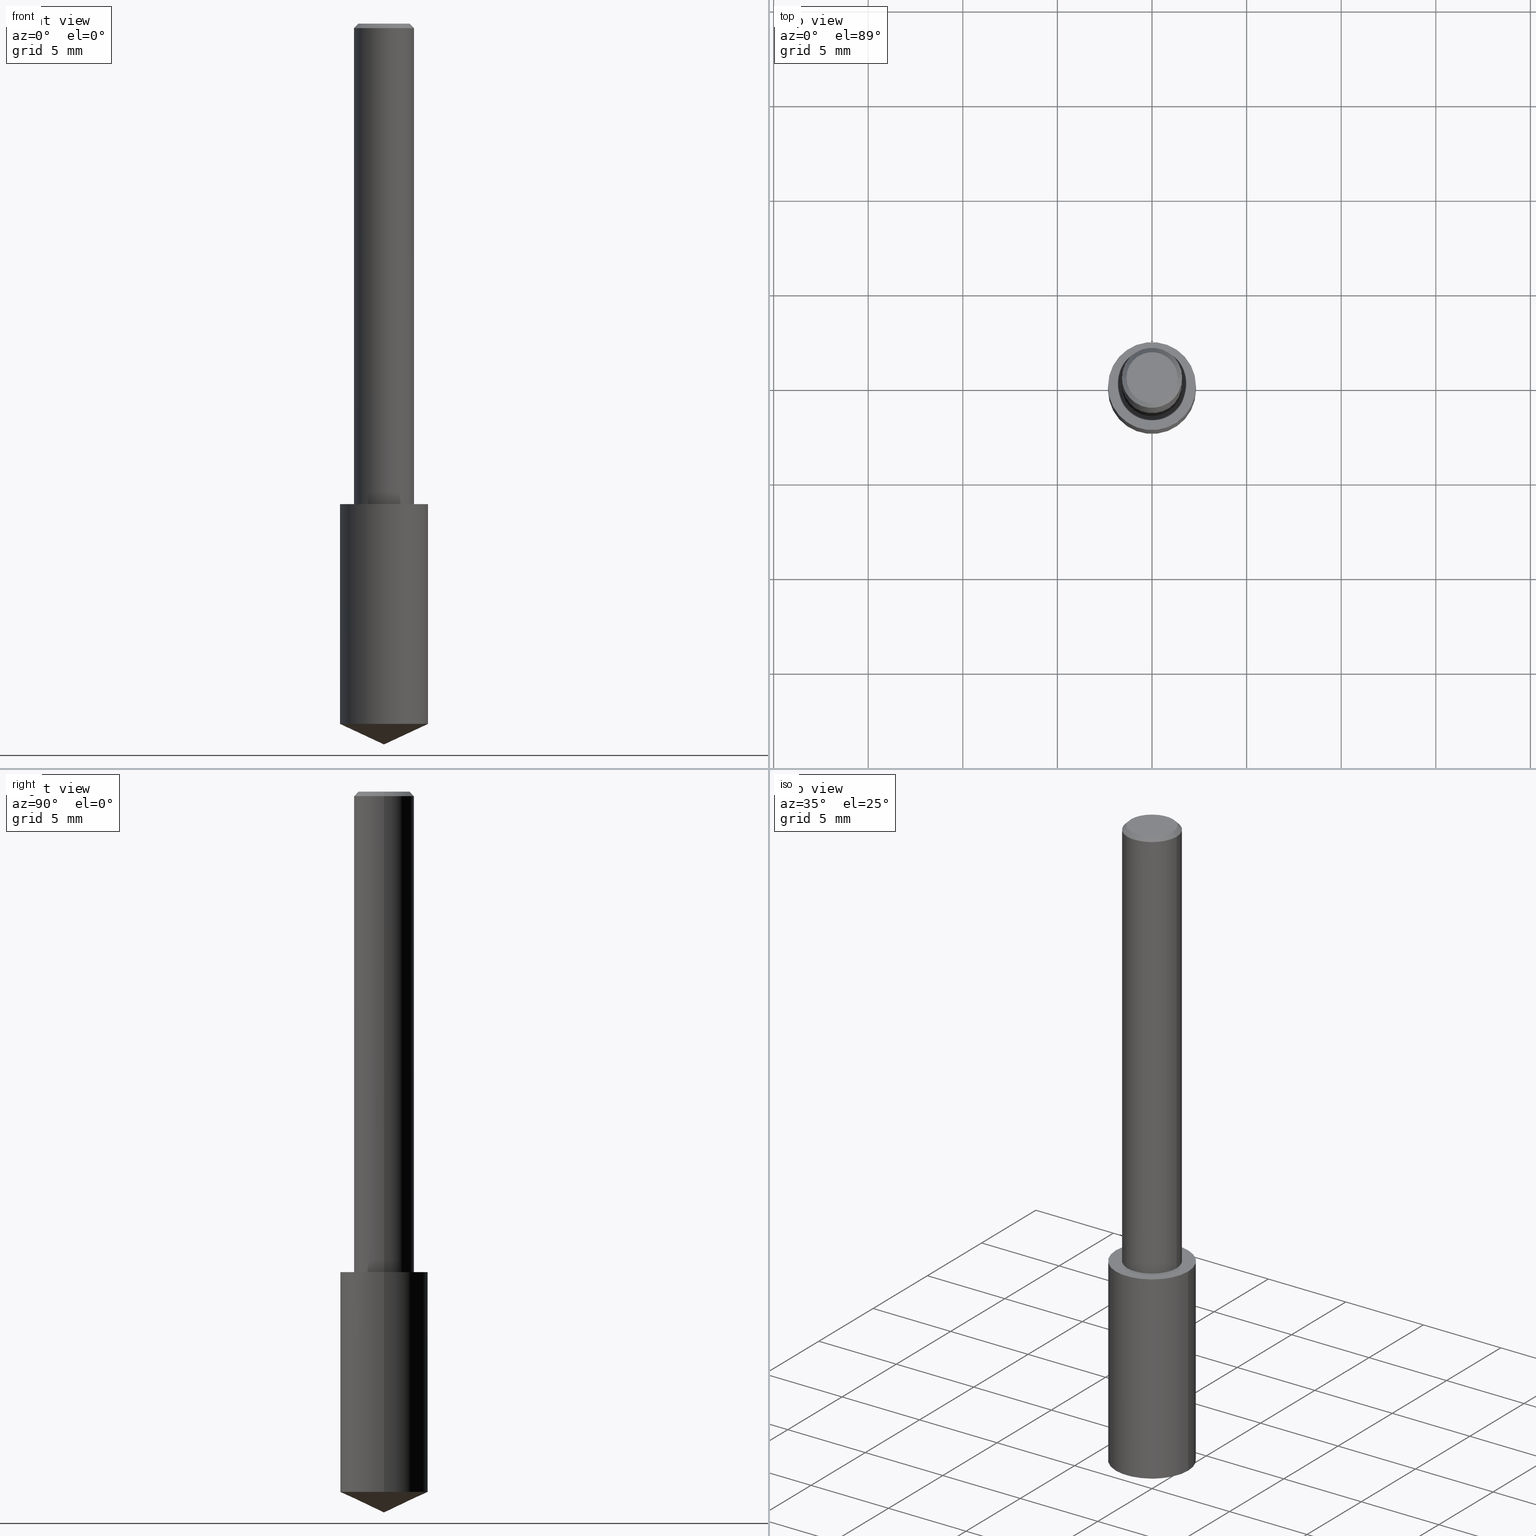
[diagram: canonical four-view strip — front | top / right | iso, engineering-drawing reading convention]
A machine part, canonical four-view strip (front | top / right | iso — engineering-drawing reading convention). The complete STEP part file that produces these views, byte-faithful:
ISO-10303-21;
HEADER;
FILE_DESCRIPTION (( 'STEP AP203' ),
    '1' );
FILE_NAME ('06118.STEP',
    '2024-04-30T18:29:56',
    ( '' ),
    ( '' ),
    'SwSTEP 2.0',
    'SolidWorks 2023',
    '' );
FILE_SCHEMA (( 'CONFIG_CONTROL_DESIGN' ));
ENDSEC;

DATA;
#1 = DIRECTION ( 'NONE',  ( 1.000000000000000000, -6.982962677686266711E-15, 0.000000000000000000 ) ) ;
#2 = EDGE_LOOP ( 'NONE', ( #256, #150, #105, #294 ) ) ;
#3 = ADVANCED_FACE ( 'NONE', ( #121 ), #163, .T. ) ;
#4 = COORDINATED_UNIVERSAL_TIME_OFFSET ( 5, 0, .BEHIND. ) ;
#5 = ORIENTED_EDGE ( 'NONE', *, *, #19, .T. ) ;
#6 = CONICAL_SURFACE ( 'NONE', #195, 84.42940631927405093, 1.134464013796314674 ) ;
#7 = APPROVAL_STATUS ( 'not_yet_approved' ) ;
#8 = AXIS2_PLACEMENT_3D ( 'NONE', #135, #312, #169 ) ;
#9 = ORIENTED_EDGE ( 'NONE', *, *, #90, .F. ) ;
#10 = PRODUCT_DEFINITION ( 'UNKNOWN', '', #117, #21 ) ;
#11 = DIRECTION ( 'NONE',  ( -2.445468806185136877E-29, 3.491481338843145188E-15, 1.000000000000000000 ) ) ;
#12 = AXIS2_PLACEMENT_3D ( 'NONE', #140, #136, #247 ) ;
#13 = DIRECTION ( 'NONE',  ( 1.000000000000000000, -6.982962677686266711E-15, 0.000000000000000000 ) ) ;
#14 = MANIFOLD_SOLID_BREP ( 'Body-Move/Copy2[2]', #271 ) ;
#15 = DIRECTION ( 'NONE',  ( -2.445468806185136597E-29, 3.491481338843145583E-15, 1.000000000000000000 ) ) ;
#16 = ADVANCED_FACE ( 'NONE', ( #265 ), #289, .T. ) ;
#17 = VECTOR ( 'NONE', #11, 39.37007874015748143 ) ;
#18 = DIRECTION ( 'NONE',  ( 1.000000000000000000, -6.982962677686266711E-15, 0.000000000000000000 ) ) ;
#19 = EDGE_CURVE ( 'NONE', #216, #152, #87, .T. ) ;
#20 = CARTESIAN_POINT ( 'NONE',  ( -0.06250000000000006939, 4.440892098500631092E-16, -3.074334431409319267E-30 ) ) ;
#21 = DESIGN_CONTEXT ( 'detailed design', #296, 'design' ) ;
#22 = EDGE_CURVE ( 'NONE', #74, #239, #26, .T. ) ;
#23 = LINE ( 'NONE', #101, #189 ) ;
#24 = DIRECTION ( 'NONE',  ( 1.000000000000000000, -6.982962677686266711E-15, 0.000000000000000000 ) ) ;
#25 = DIRECTION ( 'NONE',  ( 0.000000000000000000, 0.000000000000000000, 1.000000000000000000 ) ) ;
#26 = CIRCLE ( 'NONE', #324, 0.06250000000000000000 ) ;
#27 = CLOSED_SHELL ( 'NONE', ( #214, #245, #16, #102, #187 ) ) ;
#28 = EDGE_LOOP ( 'NONE', ( #181, #291, #297, #145 ) ) ;
#29 = AXIS2_PLACEMENT_3D ( 'NONE', #156, #133, #158 ) ;
#30 = ORIENTED_EDGE ( 'NONE', *, *, #222, .T. ) ;
#31 = FACE_OUTER_BOUND ( 'NONE', #28, .T. ) ;
#32 = CARTESIAN_POINT ( 'NONE',  ( -7.487088864773345706E-50, 1.068957861474247695E-35, 3.061616997868395197E-21 ) ) ;
#33 = CARTESIAN_POINT ( 'NONE',  ( 0.000000000000000000, 0.000000000000000000, 0.000000000000000000 ) ) ;
#34 = AXIS2_PLACEMENT_3D ( 'NONE', #330, #160, #63 ) ;
#35 = ORGANIZATION ( 'UNSPECIFIED', 'UNSPECIFIED', '' ) ;
#36 = FACE_OUTER_BOUND ( 'NONE', #85, .T. ) ;
#37 = CALENDAR_DATE ( 2024, 30, 4 ) ;
#38 = CARTESIAN_POINT ( 'NONE',  ( -0.05312499999999999861, 3.873362110279099094E-16, 3.061616995216862494E-21 ) ) ;
#39 = EDGE_CURVE ( 'NONE', #239, #74, #131, .T. ) ;
#40 = CARTESIAN_POINT ( 'NONE',  ( -9.261009624683002666E-28, 1.322226732217803884E-13, 37.87007874015748143 ) ) ;
#41 = CARTESIAN_POINT ( 'NONE',  ( -0.09154999999999999249, -4.437667167927400404E-15, -1.457309533895910114 ) ) ;
#42 = CARTESIAN_POINT ( 'NONE',  ( 3.668203209277704895E-29, -5.237222008264718177E-15, -1.500000000000000222 ) ) ;
#43 = ADVANCED_FACE ( 'NONE', ( #267 ), #335, .F. ) ;
#44 = APPROVAL_PERSON_ORGANIZATION ( #227, #69, #100 ) ;
#45 = PERSON_AND_ORGANIZATION_ROLE ( 'classification_officer' ) ;
#46 = DIRECTION ( 'NONE',  ( -2.445468806185136597E-29, 3.491481338843145583E-15, 1.000000000000000000 ) ) ;
#47 = DATE_AND_TIME ( #37, #339 ) ;
#48 = EDGE_LOOP ( 'NONE', ( #30, #5 ) ) ;
#49 = AXIS2_PLACEMENT_3D ( 'NONE', #321, #318, #89 ) ;
#50 = CC_DESIGN_DATE_AND_TIME_ASSIGNMENT ( #275, #66, ( #110 ) ) ;
#51 = ADVANCED_FACE ( 'NONE', ( #31 ), #80, .T. ) ;
#52 = EDGE_CURVE ( 'NONE', #209, #239, #75, .T. ) ;
#53 = VERTEX_POINT ( 'NONE', #203 ) ;
#54 = CALENDAR_DATE ( 2024, 30, 4 ) ;
#55 = AXIS2_PLACEMENT_3D ( 'NONE', #138, #303, #139 ) ;
#56 = PLANE ( 'NONE',  #29 ) ;
#57 = ADVANCED_BREP_SHAPE_REPRESENTATION ( '06118', ( #126, #14, #88 ), #196 ) ;
#58 = ORIENTED_EDGE ( 'NONE', *, *, #222, .F. ) ;
#59 = DIRECTION ( 'NONE',  ( -2.445468806185136877E-29, 3.491481338843145188E-15, 1.000000000000000000 ) ) ;
#60 = AXIS2_PLACEMENT_3D ( 'NONE', #116, #221, #199 ) ;
#61 = CARTESIAN_POINT ( 'NONE',  ( 2.292627005798580623E-31, -3.273263755165470184E-17, -0.009375000000000060368 ) ) ;
#62 = CARTESIAN_POINT ( 'NONE',  ( 2.445468806185136877E-29, -3.491481338843145977E-15, -1.000000000000000222 ) ) ;
#63 = DIRECTION ( 'NONE',  ( 1.000000000000000000, -6.982962677686264344E-15, 0.000000000000000000 ) ) ;
#64 = CIRCLE ( 'NONE', #258, 0.05312499999999999861 ) ;
#65 = CARTESIAN_POINT ( 'NONE',  ( -0.06250000000000000000, -1.318017778347336672E-15, -0.009375000000000060368 ) ) ;
#66 = DATE_TIME_ROLE ( 'classification_date' ) ;
#67 = DIRECTION ( 'NONE',  ( -2.445468806185136597E-29, 3.491481338843145583E-15, 1.000000000000000000 ) ) ;
#68 = EDGE_CURVE ( 'NONE', #282, #216, #118, .T. ) ;
#69 = APPROVAL ( #166, 'UNSPECIFIED' ) ;
#70 = DIRECTION ( 'NONE',  ( 2.438088387897960049E-29, -3.491481338843145188E-15, -1.000000000000000000 ) ) ;
#71 = VERTEX_POINT ( 'NONE', #277 ) ;
#72 = DIRECTION ( 'NONE',  ( -0.7071067811865453523, 2.468850131082234184E-15, -0.7071067811865496822 ) ) ;
#73 = APPROVAL_DATE_TIME ( #119, #198 ) ;
#74 = VERTEX_POINT ( 'NONE', #176 ) ;
#75 = LINE ( 'NONE', #174, #155 ) ;
#76 = PERSON_AND_ORGANIZATION_ROLE ( 'design_owner' ) ;
#77 = VERTEX_POINT ( 'NONE', #42 ) ;
#78 = MECHANICAL_CONTEXT ( 'NONE', #83, 'mechanical' ) ;
#79 = ORIENTED_EDGE ( 'NONE', *, *, #316, .F. ) ;
#80 = CONICAL_SURFACE ( 'NONE', #8, 0.06250000000000000000, 0.7853981633974452814 ) ;
#81 =( NAMED_UNIT ( * ) SI_UNIT ( $, .STERADIAN. ) SOLID_ANGLE_UNIT ( ) );
#82 = EDGE_LOOP ( 'NONE', ( #154, #285 ) ) ;
#83 = APPLICATION_CONTEXT ( 'configuration controlled 3d designs of mechanical parts and assemblies' ) ;
#84 = LINE ( 'NONE', #190, #237 ) ;
#85 = EDGE_LOOP ( 'NONE', ( #315, #306, #58, #288 ) ) ;
#86 = CC_DESIGN_PERSON_AND_ORGANIZATION_ASSIGNMENT ( #107, #76, ( #202 ) ) ;
#87 = CIRCLE ( 'NONE', #153, 0.09155000000000000637 ) ;
#88 = AXIS2_PLACEMENT_3D ( 'NONE', #188, #25, #208 ) ;
#89 = DIRECTION ( 'NONE',  ( 1.000000000000000000, -6.982962677686266711E-15, 0.000000000000000000 ) ) ;
#90 = EDGE_CURVE ( 'NONE', #236, #282, #164, .T. ) ;
#91 = CARTESIAN_POINT ( 'NONE',  ( 0.09154999999999999249, -5.727459275657949752E-15, -1.457309533895910114 ) ) ;
#92 = AXIS2_PLACEMENT_3D ( 'NONE', #218, #15, #13 ) ;
#93 = CARTESIAN_POINT ( 'NONE',  ( 3.487325309782606283E-29, -1.999483526901986298E-15, -1.000000000000000222 ) ) ;
#94 = APPROVAL_STATUS ( 'not_yet_approved' ) ;
#95 = CARTESIAN_POINT ( 'NONE',  ( -9.261009624683002666E-28, 1.322226732217803884E-13, 37.87007874015748143 ) ) ;
#96 = DIRECTION ( 'NONE',  ( 2.445468806185136597E-29, -3.491481338843145583E-15, -1.000000000000000000 ) ) ;
#97 = CARTESIAN_POINT ( 'NONE',  ( 0.09155000000000000637, -4.130771571985324250E-15, -1.000000000000000222 ) ) ;
#98 = VECTOR ( 'NONE', #248, 39.37007874015748143 ) ;
#99 = DIRECTION ( 'NONE',  ( -2.445468806185136597E-29, 3.491481338843145583E-15, 1.000000000000000000 ) ) ;
#100 = APPROVAL_ROLE ( '' ) ;
#101 = CARTESIAN_POINT ( 'NONE',  ( 3.668203209277704895E-29, -5.237222008264718177E-15, -1.500000000000000222 ) ) ;
#102 = ADVANCED_FACE ( 'NONE', ( #228 ), #129, .T. ) ;
#103 = EDGE_LOOP ( 'NONE', ( #111, #231, #251, #263 ) ) ;
#104 = DATE_AND_TIME ( #180, #290 ) ;
#105 = ORIENTED_EDGE ( 'NONE', *, *, #260, .T. ) ;
#106 = CIRCLE ( 'NONE', #92, 0.09155000000000000637 ) ;
#107 = PERSON_AND_ORGANIZATION ( #183, #35 ) ;
#108 = PERSON_AND_ORGANIZATION ( #183, #35 ) ;
#109 = AXIS2_PLACEMENT_3D ( 'NONE', #40, #197, #326 ) ;
#110 = SECURITY_CLASSIFICATION ( '', '', #168 ) ;
#111 = ORIENTED_EDGE ( 'NONE', *, *, #184, .T. ) ;
#112 = FACE_OUTER_BOUND ( 'NONE', #308, .T. ) ;
#113 = EDGE_CURVE ( 'NONE', #77, #282, #84, .T. ) ;
#114 = DIRECTION ( 'NONE',  ( -2.445468806185136597E-29, 3.491481338843145583E-15, 1.000000000000000000 ) ) ;
#115 = DIRECTION ( 'NONE',  ( -2.445468806185136597E-29, 3.491481338843145583E-15, 1.000000000000000000 ) ) ;
#116 = CARTESIAN_POINT ( 'NONE',  ( 2.445468806185137438E-29, -3.491481338843146371E-15, -1.000000000000000222 ) ) ;
#117 = PRODUCT_DEFINITION_FORMATION_WITH_SPECIFIED_SOURCE ( 'ANY', '', #202, .NOT_KNOWN. ) ;
#118 = LINE ( 'NONE', #332, #17 ) ;
#119 = DATE_AND_TIME ( #175, #304 ) ;
#120 = ORIENTED_EDGE ( 'NONE', *, *, #322, .F. ) ;
#121 = FACE_OUTER_BOUND ( 'NONE', #279, .T. ) ;
#122 = PERSON_AND_ORGANIZATION ( #183, #35 ) ;
#123 = ORIENTED_EDGE ( 'NONE', *, *, #182, .F. ) ;
#124 = DIRECTION ( 'NONE',  ( 0.9063077870366501587, -4.853149677051382734E-15, 0.4226182617406989972 ) ) ;
#125 = SHAPE_DEFINITION_REPRESENTATION ( #269, #57 ) ;
#126 = MANIFOLD_SOLID_BREP ( 'Body-Move/Copy2[1]', #27 ) ;
#127 = ORIENTED_EDGE ( 'NONE', *, *, #322, .T. ) ;
#128 = ADVANCED_FACE ( 'NONE', ( #112 ), #298, .T. ) ;
#129 = CYLINDRICAL_SURFACE ( 'NONE', #49, 0.09155000000000000637 ) ;
#130 = ORIENTED_EDGE ( 'NONE', *, *, #113, .T. ) ;
#131 = CIRCLE ( 'NONE', #249, 0.06250000000000000000 ) ;
#132 = ORIENTED_EDGE ( 'NONE', *, *, #113, .F. ) ;
#133 = DIRECTION ( 'NONE',  ( -2.438088387897960049E-29, 3.491481338843145188E-15, 1.000000000000000000 ) ) ;
#134 =( LENGTH_UNIT ( ) NAMED_UNIT ( * ) SI_UNIT ( $, .METRE. ) );
#135 = CARTESIAN_POINT ( 'NONE',  ( 2.292627005798580623E-31, -3.273263755165470184E-17, -0.009375000000000060368 ) ) ;
#136 = DIRECTION ( 'NONE',  ( -2.445468806185136597E-29, 3.491481338843145583E-15, 1.000000000000000000 ) ) ;
#137 = CC_DESIGN_APPROVAL ( #69, ( #110 ) ) ;
#138 = CARTESIAN_POINT ( 'NONE',  ( -7.487088864773345706E-50, 1.068957861474247695E-35, 3.061616997868395197E-21 ) ) ;
#139 = DIRECTION ( 'NONE',  ( 1.000000000000000000, -6.982962677686266711E-15, 4.876176628004948512E-29 ) ) ;
#140 = CARTESIAN_POINT ( 'NONE',  ( 2.445468806185137438E-29, -3.491481338843146371E-15, -1.000000000000000222 ) ) ;
#141 = DIRECTION ( 'NONE',  ( -2.445468806185136597E-29, 3.491481338843145583E-15, 1.000000000000000000 ) ) ;
#142 = LINE ( 'NONE', #226, #338 ) ;
#143 = PERSON_AND_ORGANIZATION_ROLE ( 'design_supplier' ) ;
#144 = CALENDAR_DATE ( 2024, 30, 4 ) ;
#145 = ORIENTED_EDGE ( 'NONE', *, *, #52, .F. ) ;
#146 = CARTESIAN_POINT ( 'NONE',  ( 3.563805006098649233E-29, -5.088169042515772268E-15, -1.457309533895910114 ) ) ;
#147 = APPROVAL_DATE_TIME ( #47, #69 ) ;
#148 = AXIS2_PLACEMENT_3D ( 'NONE', #207, #70, #307 ) ;
#149 = ORIENTED_EDGE ( 'NONE', *, *, #268, .F. ) ;
#150 = ORIENTED_EDGE ( 'NONE', *, *, #182, .T. ) ;
#151 = PERSON_AND_ORGANIZATION ( #183, #35 ) ;
#152 = VERTEX_POINT ( 'NONE', #327 ) ;
#153 = AXIS2_PLACEMENT_3D ( 'NONE', #62, #141, #18 ) ;
#154 = ORIENTED_EDGE ( 'NONE', *, *, #193, .T. ) ;
#155 = VECTOR ( 'NONE', #72, 39.37007874015748143 ) ;
#156 = CARTESIAN_POINT ( 'NONE',  ( 2.445468806185137438E-29, -3.491481338843146371E-15, -1.000000000000000222 ) ) ;
#157 = LOCAL_TIME ( 14, 29, 56.00000000000000000, #213 ) ;
#158 = DIRECTION ( 'NONE',  ( 1.000000000000000000, -6.982962677686265922E-15, 4.876176775795935793E-29 ) ) ;
#159 = DIRECTION ( 'NONE',  ( 1.000000000000000000, -6.982962677686266711E-15, 0.000000000000000000 ) ) ;
#160 = DIRECTION ( 'NONE',  ( -2.445468806185136597E-29, 3.491481338843145583E-15, 1.000000000000000000 ) ) ;
#161 = CARTESIAN_POINT ( 'NONE',  ( 2.292627005798580623E-31, -3.273263755165470184E-17, -0.009375000000000060368 ) ) ;
#162 = FACE_OUTER_BOUND ( 'NONE', #103, .T. ) ;
#163 = CONICAL_SURFACE ( 'NONE', #220, 0.06250000000000000000, 0.7853981633974452814 ) ;
#164 = CIRCLE ( 'NONE', #171, 0.09155000000000000637 ) ;
#165 = CARTESIAN_POINT ( 'NONE',  ( 0.000000000000000000, 0.000000000000000000, 0.000000000000000000 ) ) ;
#166 = APPROVAL_STATUS ( 'not_yet_approved' ) ;
#167 = DIRECTION ( 'NONE',  ( 1.000000000000000000, -6.982962677686266711E-15, 4.876176628004948512E-29 ) ) ;
#168 = SECURITY_CLASSIFICATION_LEVEL ( 'unclassified' ) ;
#169 = DIRECTION ( 'NONE',  ( -1.000000000000000000, 6.982962677686266711E-15, 0.000000000000000000 ) ) ;
#170 = ORIENTED_EDGE ( 'NONE', *, *, #334, .T. ) ;
#171 = AXIS2_PLACEMENT_3D ( 'NONE', #146, #253, #24 ) ;
#172 = VECTOR ( 'NONE', #59, 39.37007874015748143 ) ;
#173 = DIRECTION ( 'NONE',  ( -2.445468806185136597E-29, 3.491481338843145583E-15, 1.000000000000000000 ) ) ;
#174 = CARTESIAN_POINT ( 'NONE',  ( -0.06250000000000000000, 4.037025298037369984E-16, -0.009375000000000060368 ) ) ;
#175 = CALENDAR_DATE ( 2024, 30, 4 ) ;
#176 = CARTESIAN_POINT ( 'NONE',  ( 0.06250000000000000000, -4.691678049070463404E-16, -0.009375000000000060368 ) ) ;
#177 = COORDINATED_UNIVERSAL_TIME_OFFSET ( 5, 0, .BEHIND. ) ;
#178 = ORIENTED_EDGE ( 'NONE', *, *, #223, .T. ) ;
#179 = LINE ( 'NONE', #287, #172 ) ;
#180 = CALENDAR_DATE ( 2024, 30, 4 ) ;
#181 = ORIENTED_EDGE ( 'NONE', *, *, #238, .F. ) ;
#182 = EDGE_CURVE ( 'NONE', #282, #236, #309, .T. ) ;
#183 = PERSON ( 'UNSPECIFIED', 'UNSPECIFIED', 'UNSPECIFIED', ('UNSPECIFIED'), ('UNSPECIFIED'), ('UNSPECIFIED') ) ;
#184 = EDGE_CURVE ( 'NONE', #53, #186, #331, .T. ) ;
#185 = APPLICATION_PROTOCOL_DEFINITION ( 'international standard', 'config_control_design', 1994, #296 ) ;
#186 = VERTEX_POINT ( 'NONE', #201 ) ;
#187 = ADVANCED_FACE ( 'NONE', ( #243 ), #305, .F. ) ;
#188 = CARTESIAN_POINT ( 'NONE',  ( 0.000000000000000000, 0.000000000000000000, 0.000000000000000000 ) ) ;
#189 = VECTOR ( 'NONE', #124, 39.37007874015748143 ) ;
#190 = CARTESIAN_POINT ( 'NONE',  ( 3.668203209277704895E-29, -5.237222008264718177E-15, -1.500000000000000222 ) ) ;
#191 = UNCERTAINTY_MEASURE_WITH_UNIT (LENGTH_MEASURE( 1.000000000000000082E-05 ), #325, 'distance_accuracy_value', 'NONE');
#192 = DIMENSIONAL_EXPONENTS ( 1.000000000000000000, 0.000000000000000000, 0.000000000000000000, 0.000000000000000000, 0.000000000000000000, 0.000000000000000000, 0.000000000000000000 ) ;
#193 = EDGE_CURVE ( 'NONE', #209, #71, #64, .T. ) ;
#194 = ORIENTED_EDGE ( 'NONE', *, *, #223, .F. ) ;
#195 = AXIS2_PLACEMENT_3D ( 'NONE', #95, #173, #1 ) ;
#196 =( GEOMETRIC_REPRESENTATION_CONTEXT ( 3 ) GLOBAL_UNCERTAINTY_ASSIGNED_CONTEXT ( ( #191 ) ) GLOBAL_UNIT_ASSIGNED_CONTEXT ( ( #325, #336, #81 ) ) REPRESENTATION_CONTEXT ( 'NONE', 'WORKASPACE' ) );
#197 = DIRECTION ( 'NONE',  ( -2.445468806185136597E-29, 3.491481338843145583E-15, 1.000000000000000000 ) ) ;
#198 = APPROVAL ( #94, 'UNSPECIFIED' ) ;
#199 = DIRECTION ( 'NONE',  ( 1.000000000000000000, -6.982962677686264344E-15, 0.000000000000000000 ) ) ;
#200 = DIRECTION ( 'NONE',  ( 1.000000000000000000, -6.982962677686266711E-15, 4.876176775795935793E-29 ) ) ;
#201 = CARTESIAN_POINT ( 'NONE',  ( -0.06250000000000012490, -1.318017778347335489E-15, -1.000000000000000222 ) ) ;
#202 = PRODUCT ( '06118', '06118', '', ( #78 ) ) ;
#203 = CARTESIAN_POINT ( 'NONE',  ( 0.06250000000000012490, -3.927916506198539224E-15, -1.000000000000000222 ) ) ;
#204 = APPROVAL_ROLE ( '' ) ;
#205 = CIRCLE ( 'NONE', #60, 0.06250000000000012490 ) ;
#206 = APPROVAL_PERSON_ORGANIZATION ( #108, #198, #204 ) ;
#207 = CARTESIAN_POINT ( 'NONE',  ( -3.743544432386672853E-50, 5.344789307371238476E-36, 1.530808498934197599E-21 ) ) ;
#208 = DIRECTION ( 'NONE',  ( 1.000000000000000000, 0.000000000000000000, 0.000000000000000000 ) ) ;
#209 = VERTEX_POINT ( 'NONE', #38 ) ;
#210 = DATE_TIME_ROLE ( 'creation_date' ) ;
#211 = AXIS2_PLACEMENT_3D ( 'NONE', #219, #115, #241 ) ;
#212 = ORIENTED_EDGE ( 'NONE', *, *, #39, .T. ) ;
#213 = COORDINATED_UNIVERSAL_TIME_OFFSET ( 5, 0, .BEHIND. ) ;
#214 = ADVANCED_FACE ( 'NONE', ( #36 ), #302, .T. ) ;
#215 = LOCAL_TIME ( 14, 29, 56.00000000000000000, #284 ) ;
#216 = VERTEX_POINT ( 'NONE', #329 ) ;
#217 = LENGTH_MEASURE_WITH_UNIT ( LENGTH_MEASURE( 0.02539999999999999897 ), #134 );
#218 = CARTESIAN_POINT ( 'NONE',  ( 2.445468806185136877E-29, -3.491481338843145977E-15, -1.000000000000000222 ) ) ;
#219 = CARTESIAN_POINT ( 'NONE',  ( 3.563805006098649233E-29, -5.088169042515772268E-15, -1.457309533895910114 ) ) ;
#220 = AXIS2_PLACEMENT_3D ( 'NONE', #61, #96, #240 ) ;
#221 = DIRECTION ( 'NONE',  ( -2.445468806185136597E-29, 3.491481338843145583E-15, 1.000000000000000000 ) ) ;
#222 = EDGE_CURVE ( 'NONE', #152, #216, #106, .T. ) ;
#223 = EDGE_CURVE ( 'NONE', #186, #53, #205, .T. ) ;
#224 = LINE ( 'NONE', #97, #242 ) ;
#225 = ORIENTED_EDGE ( 'NONE', *, *, #184, .F. ) ;
#226 = CARTESIAN_POINT ( 'NONE',  ( 0.06250000000000000000, -4.615137624123753937E-16, -0.009375000000000060368 ) ) ;
#227 = PERSON_AND_ORGANIZATION ( #183, #35 ) ;
#228 = FACE_OUTER_BOUND ( 'NONE', #2, .T. ) ;
#229 = DATE_AND_TIME ( #54, #157 ) ;
#230 = COORDINATED_UNIVERSAL_TIME_OFFSET ( 5, 0, .BEHIND. ) ;
#231 = ORIENTED_EDGE ( 'NONE', *, *, #268, .T. ) ;
#232 = PERSON_AND_ORGANIZATION ( #183, #35 ) ;
#233 = CC_DESIGN_SECURITY_CLASSIFICATION ( #110, ( #117 ) ) ;
#234 = PERSON_AND_ORGANIZATION_ROLE ( 'creator' ) ;
#235 = CC_DESIGN_PERSON_AND_ORGANIZATION_ASSIGNMENT ( #278, #143, ( #117 ) ) ;
#236 = VERTEX_POINT ( 'NONE', #91 ) ;
#237 = VECTOR ( 'NONE', #262, 39.37007874015748143 ) ;
#238 = EDGE_CURVE ( 'NONE', #71, #209, #299, .T. ) ;
#239 = VERTEX_POINT ( 'NONE', #65 ) ;
#240 = DIRECTION ( 'NONE',  ( -1.000000000000000000, 6.982962677686266711E-15, 0.000000000000000000 ) ) ;
#241 = DIRECTION ( 'NONE',  ( 1.000000000000000000, -6.982962677686266711E-15, 0.000000000000000000 ) ) ;
#242 = VECTOR ( 'NONE', #311, 39.37007874015748143 ) ;
#243 = FACE_OUTER_BOUND ( 'NONE', #48, .T. ) ;
#244 = ADVANCED_FACE ( 'NONE', ( #162 ), #270, .T. ) ;
#245 = ADVANCED_FACE ( 'NONE', ( #314 ), #6, .T. ) ;
#246 = CC_DESIGN_PERSON_AND_ORGANIZATION_ASSIGNMENT ( #151, #234, ( #10 ) ) ;
#247 = DIRECTION ( 'NONE',  ( 1.000000000000000000, -6.982962677686266711E-15, 0.000000000000000000 ) ) ;
#248 = DIRECTION ( 'NONE',  ( -2.445468806185136877E-29, 3.491481338843145188E-15, 1.000000000000000000 ) ) ;
#249 = AXIS2_PLACEMENT_3D ( 'NONE', #250, #46, #159 ) ;
#250 = CARTESIAN_POINT ( 'NONE',  ( 2.292627005798580623E-31, -3.273263755165470184E-17, -0.009375000000000060368 ) ) ;
#251 = ORIENTED_EDGE ( 'NONE', *, *, #22, .F. ) ;
#252 = DIRECTION ( 'NONE',  ( 0.7071067811865453523, -7.319954787623248157E-15, -0.7071067811865496822 ) ) ;
#253 = DIRECTION ( 'NONE',  ( -2.445468806185136597E-29, 3.491481338843145583E-15, 1.000000000000000000 ) ) ;
#254 = ORIENTED_EDGE ( 'NONE', *, *, #39, .F. ) ;
#255 = APPLICATION_PROTOCOL_DEFINITION ( 'international standard', 'config_control_design', 1994, #83 ) ;
#256 = ORIENTED_EDGE ( 'NONE', *, *, #68, .F. ) ;
#257 = EDGE_LOOP ( 'NONE', ( #225, #194 ) ) ;
#258 = AXIS2_PLACEMENT_3D ( 'NONE', #32, #67, #167 ) ;
#259 = APPROVAL_PERSON_ORGANIZATION ( #232, #292, #283 ) ;
#260 = EDGE_CURVE ( 'NONE', #236, #152, #224, .T. ) ;
#261 = CC_DESIGN_PERSON_AND_ORGANIZATION_ASSIGNMENT ( #122, #273, ( #117 ) ) ;
#262 = DIRECTION ( 'NONE',  ( -0.9063077870366501587, 7.915267918739016209E-15, 0.4226182617406989972 ) ) ;
#263 = ORIENTED_EDGE ( 'NONE', *, *, #334, .F. ) ;
#264 = AXIS2_PLACEMENT_3D ( 'NONE', #93, #274, #266 ) ;
#265 = FACE_OUTER_BOUND ( 'NONE', #313, .T. ) ;
#266 = DIRECTION ( 'NONE',  ( -1.000000000000000000, 6.982962677686265922E-15, -4.876176775795935793E-29 ) ) ;
#267 = FACE_OUTER_BOUND ( 'NONE', #82, .T. ) ;
#268 = EDGE_CURVE ( 'NONE', #186, #239, #281, .T. ) ;
#269 = PRODUCT_DEFINITION_SHAPE ( 'NONE', 'NONE',  #10 ) ;
#270 = CYLINDRICAL_SURFACE ( 'NONE', #295, 0.06250000000000006939 ) ;
#271 = CLOSED_SHELL ( 'NONE', ( #51, #244, #340, #128, #3, #43 ) ) ;
#272 = DIRECTION ( 'NONE',  ( -2.445468806185136597E-29, 3.491481338843145583E-15, 1.000000000000000000 ) ) ;
#273 = PERSON_AND_ORGANIZATION_ROLE ( 'creator' ) ;
#274 = DIRECTION ( 'NONE',  ( 2.438088387897960049E-29, -3.491481338843145188E-15, -1.000000000000000000 ) ) ;
#275 = DATE_AND_TIME ( #144, #215 ) ;
#276 = DIRECTION ( 'NONE',  ( 1.000000000000000000, -6.982962677686266711E-15, 4.876176775795935793E-29 ) ) ;
#277 = CARTESIAN_POINT ( 'NONE',  ( 0.05312499999999999861, -4.129888592719939842E-16, 3.061617000609493422E-21 ) ) ;
#278 = PERSON_AND_ORGANIZATION ( #183, #35 ) ;
#279 = EDGE_LOOP ( 'NONE', ( #79, #337, #323, #212 ) ) ;
#280 = CC_DESIGN_APPROVAL ( #198, ( #117 ) ) ;
#281 = LINE ( 'NONE', #20, #98 ) ;
#282 = VERTEX_POINT ( 'NONE', #41 ) ;
#283 = APPROVAL_ROLE ( '' ) ;
#284 = COORDINATED_UNIVERSAL_TIME_OFFSET ( 5, 0, .BEHIND. ) ;
#285 = ORIENTED_EDGE ( 'NONE', *, *, #238, .T. ) ;
#286 = PRODUCT_RELATED_PRODUCT_CATEGORY ( 'detail', '', ( #202 ) ) ;
#287 = CARTESIAN_POINT ( 'NONE',  ( 0.06250000000000006939, -4.364351673553921624E-16, 3.047610484872463374E-30 ) ) ;
#288 = ORIENTED_EDGE ( 'NONE', *, *, #260, .F. ) ;
#289 = CONICAL_SURFACE ( 'NONE', #109, 84.42940631927405093, 1.134464013796314674 ) ;
#290 = LOCAL_TIME ( 14, 29, 56.00000000000000000, #4 ) ;
#291 = ORIENTED_EDGE ( 'NONE', *, *, #316, .T. ) ;
#292 = APPROVAL ( #7, 'UNSPECIFIED' ) ;
#293 = APPROVAL_DATE_TIME ( #104, #292 ) ;
#294 = ORIENTED_EDGE ( 'NONE', *, *, #19, .F. ) ;
#295 = AXIS2_PLACEMENT_3D ( 'NONE', #165, #272, #276 ) ;
#296 = APPLICATION_CONTEXT ( 'configuration controlled 3d designs of mechanical parts and assemblies' ) ;
#297 = ORIENTED_EDGE ( 'NONE', *, *, #22, .T. ) ;
#298 = CYLINDRICAL_SURFACE ( 'NONE', #319, 0.06250000000000006939 ) ;
#299 = CIRCLE ( 'NONE', #55, 0.05312499999999999861 ) ;
#300 = FACE_OUTER_BOUND ( 'NONE', #257, .T. ) ;
#301 = DIRECTION ( 'NONE',  ( 1.000000000000000000, -6.982962677686266711E-15, 0.000000000000000000 ) ) ;
#302 = CYLINDRICAL_SURFACE ( 'NONE', #12, 0.09155000000000000637 ) ;
#303 = DIRECTION ( 'NONE',  ( -2.445468806185136597E-29, 3.491481338843145583E-15, 1.000000000000000000 ) ) ;
#304 = LOCAL_TIME ( 14, 29, 56.00000000000000000, #230 ) ;
#305 = PLANE ( 'NONE',  #264 ) ;
#306 = ORIENTED_EDGE ( 'NONE', *, *, #68, .T. ) ;
#307 = DIRECTION ( 'NONE',  ( -1.000000000000000000, 6.982962677686265922E-15, -4.876176775795935793E-29 ) ) ;
#308 = EDGE_LOOP ( 'NONE', ( #149, #178, #170, #254 ) ) ;
#309 = CIRCLE ( 'NONE', #211, 0.09155000000000000637 ) ;
#310 = CC_DESIGN_APPROVAL ( #292, ( #10 ) ) ;
#311 = DIRECTION ( 'NONE',  ( -2.445468806185136877E-29, 3.491481338843145188E-15, 1.000000000000000000 ) ) ;
#312 = DIRECTION ( 'NONE',  ( 2.445468806185136597E-29, -3.491481338843145583E-15, -1.000000000000000000 ) ) ;
#313 = EDGE_LOOP ( 'NONE', ( #132, #127, #123 ) ) ;
#314 = FACE_OUTER_BOUND ( 'NONE', #317, .T. ) ;
#315 = ORIENTED_EDGE ( 'NONE', *, *, #90, .T. ) ;
#316 = EDGE_CURVE ( 'NONE', #71, #74, #142, .T. ) ;
#317 = EDGE_LOOP ( 'NONE', ( #120, #130, #9 ) ) ;
#318 = DIRECTION ( 'NONE',  ( -2.445468806185136597E-29, 3.491481338843145583E-15, 1.000000000000000000 ) ) ;
#319 = AXIS2_PLACEMENT_3D ( 'NONE', #33, #114, #200 ) ;
#320 = CC_DESIGN_PERSON_AND_ORGANIZATION_ASSIGNMENT ( #333, #45, ( #110 ) ) ;
#321 = CARTESIAN_POINT ( 'NONE',  ( 2.445468806185137438E-29, -3.491481338843146371E-15, -1.000000000000000222 ) ) ;
#322 = EDGE_CURVE ( 'NONE', #77, #236, #23, .T. ) ;
#323 = ORIENTED_EDGE ( 'NONE', *, *, #52, .T. ) ;
#324 = AXIS2_PLACEMENT_3D ( 'NONE', #161, #99, #301 ) ;
#325 =( CONVERSION_BASED_UNIT ( 'INCH', #217 ) LENGTH_UNIT ( ) NAMED_UNIT ( #192 ) );
#326 = DIRECTION ( 'NONE',  ( 1.000000000000000000, -6.982962677686266711E-15, 0.000000000000000000 ) ) ;
#327 = CARTESIAN_POINT ( 'NONE',  ( 0.09155000000000000637, -4.130771571985323461E-15, -1.000000000000000222 ) ) ;
#328 = CC_DESIGN_DATE_AND_TIME_ASSIGNMENT ( #229, #210, ( #10 ) ) ;
#329 = CARTESIAN_POINT ( 'NONE',  ( -0.09155000000000000637, -3.639323316091087258E-15, -1.000000000000000222 ) ) ;
#330 = CARTESIAN_POINT ( 'NONE',  ( 2.445468806185137438E-29, -3.491481338843146371E-15, -1.000000000000000222 ) ) ;
#331 = CIRCLE ( 'NONE', #34, 0.06250000000000012490 ) ;
#332 = CARTESIAN_POINT ( 'NONE',  ( -0.09155000000000000637, -2.840979464254774902E-15, -1.000000000000000222 ) ) ;
#333 = PERSON_AND_ORGANIZATION ( #183, #35 ) ;
#334 = EDGE_CURVE ( 'NONE', #53, #74, #179, .T. ) ;
#335 = PLANE ( 'NONE',  #148 ) ;
#336 =( NAMED_UNIT ( * ) PLANE_ANGLE_UNIT ( ) SI_UNIT ( $, .RADIAN. ) );
#337 = ORIENTED_EDGE ( 'NONE', *, *, #193, .F. ) ;
#338 = VECTOR ( 'NONE', #252, 39.37007874015748143 ) ;
#339 = LOCAL_TIME ( 14, 29, 56.00000000000000000, #177 ) ;
#340 = ADVANCED_FACE ( 'NONE', ( #300 ), #56, .F. ) ;
ENDSEC;
END-ISO-10303-21;
